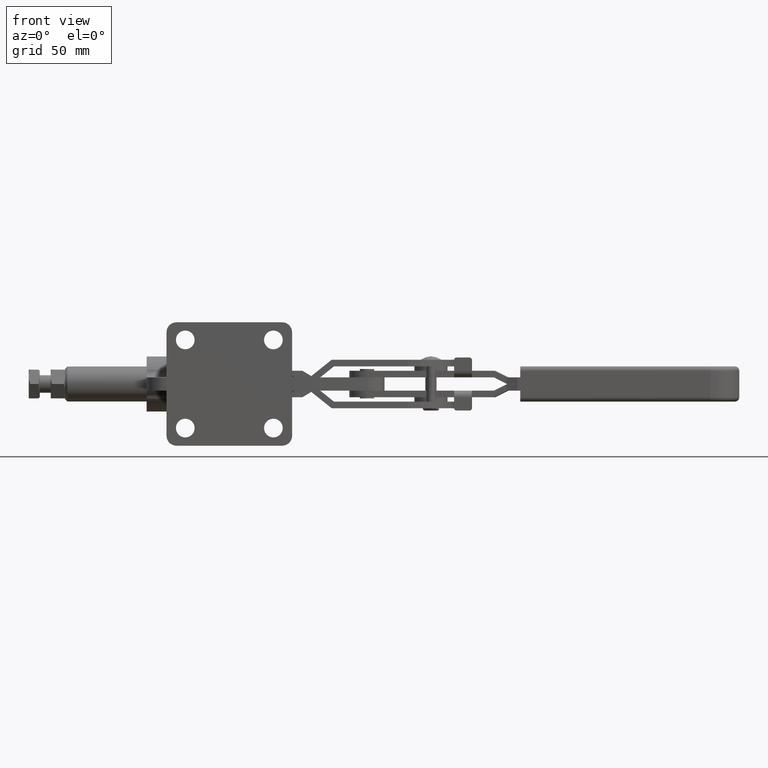
[diagram: clean part render]
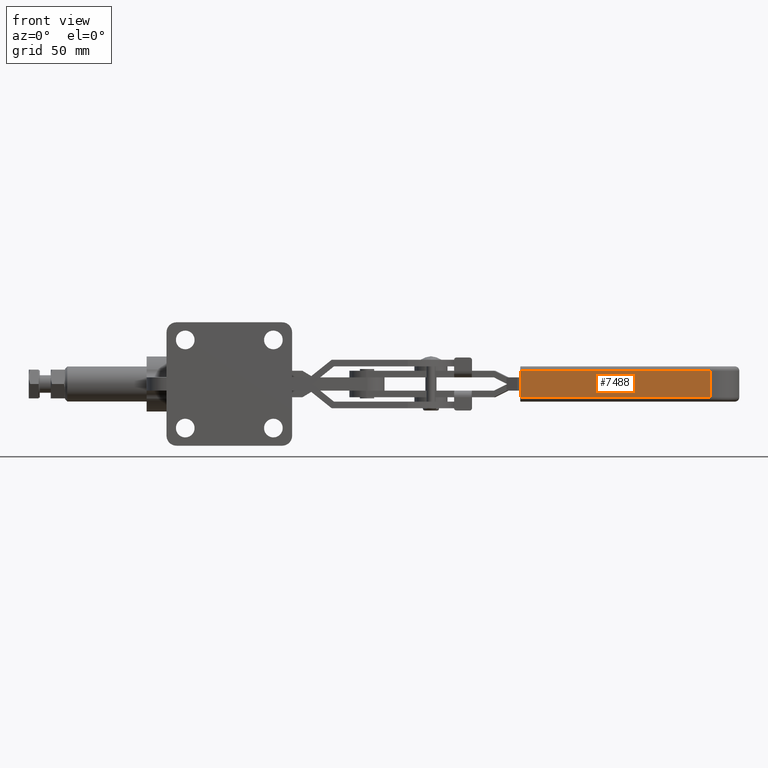
[diagram: same view with one face highlighted and labeled with its STEP entity id]
A machine part, front view. The second image highlights one B-rep face of the part: STEP entity #7488.
In plain terms, the highlighted planar face has unit normal (0.041, 0.9992, 0).
Its self-contained STEP definition (entity closure, byte-faithful):
#362 = LINE ( 'NONE', #4372, #4980 ) ;
#456 = CARTESIAN_POINT ( 'NONE',  ( 255.7525299247839700, 25.09048934197528500, -4.985681531188872900 ) ) ;
#465 = VERTEX_POINT ( 'NONE', #456 ) ;
#724 = EDGE_CURVE ( 'NONE', #4778, #4892, #5882, .T. ) ;
#875 = CARTESIAN_POINT ( 'NONE',  ( 169.5244894003020900, 28.62718524907047200, -4.985681531188870300 ) ) ;
#1108 = CARTESIAN_POINT ( 'NONE',  ( 255.7525299247839700, 25.09048934197527100, -16.98568153118885600 ) ) ;
#1278 = VERTEX_POINT ( 'NONE', #875 ) ;
#1338 = LINE ( 'NONE', #3234, #2716 ) ;
#1712 = PLANE ( 'NONE',  #3819 ) ;
#1719 = ORIENTED_EDGE ( 'NONE', *, *, #5346, .T. ) ;
#1730 = ORIENTED_EDGE ( 'NONE', *, *, #6124, .T. ) ;
#2150 = EDGE_CURVE ( 'NONE', #4778, #1278, #362, .T. ) ;
#2314 = DIRECTION ( 'NONE',  ( 0.04098115620526390100, 0.9991599195504591300, 1.190258440231679800E-016 ) ) ;
#2716 = VECTOR ( 'NONE', #4489, 1000.000000000000100 ) ;
#3234 = CARTESIAN_POINT ( 'NONE',  ( 169.5244894003020900, 28.62718524907047200, -4.985681531188870300 ) ) ;
#3819 = AXIS2_PLACEMENT_3D ( 'NONE', #5988, #2314, #6623 ) ;
#4023 = ORIENTED_EDGE ( 'NONE', *, *, #724, .T. ) ;
#4104 = CARTESIAN_POINT ( 'NONE',  ( 255.7525299247839700, 25.09048934197527100, -16.98568153118885600 ) ) ;
#4129 = ORIENTED_EDGE ( 'NONE', *, *, #2150, .F. ) ;
#4296 = DIRECTION ( 'NONE',  ( 2.391543916884221600E-017, -1.201068257676474700E-016, 1.000000000000000000 ) ) ;
#4372 = CARTESIAN_POINT ( 'NONE',  ( 169.5244894003020900, 28.62718524907047200, -18.98568153118885200 ) ) ;
#4489 = DIRECTION ( 'NONE',  ( -0.9991599195504590200, 0.04098115620526389400, 2.881746486405677700E-017 ) ) ;
#4620 = CARTESIAN_POINT ( 'NONE',  ( 169.5244894003020900, 28.62718524907047200, -16.98568153118885200 ) ) ;
#4709 = EDGE_LOOP ( 'NONE', ( #1719, #1730, #4129, #4023 ) ) ;
#4778 = VERTEX_POINT ( 'NONE', #4620 ) ;
#4892 = VERTEX_POINT ( 'NONE', #1108 ) ;
#4980 = VECTOR ( 'NONE', #4296, 1000.000000000000000 ) ;
#5267 = VECTOR ( 'NONE', #5409, 1000.000000000000000 ) ;
#5346 = EDGE_CURVE ( 'NONE', #4892, #465, #6879, .T. ) ;
#5409 = DIRECTION ( 'NONE',  ( 2.391543916884221600E-017, -1.201068257676474700E-016, 1.000000000000000000 ) ) ;
#5697 = CARTESIAN_POINT ( 'NONE',  ( 255.7525299247839700, 25.09048934197527100, -18.98568153118885600 ) ) ;
#5882 = LINE ( 'NONE', #4104, #7325 ) ;
#5988 = CARTESIAN_POINT ( 'NONE',  ( 169.5244894003020900, 28.62718524907047200, -18.98568153118885200 ) ) ;
#6124 = EDGE_CURVE ( 'NONE', #465, #1278, #1338, .T. ) ;
#6623 = DIRECTION ( 'NONE',  ( 0.9991599195504591300, -0.04098115620526390100, -2.881746486405678300E-017 ) ) ;
#6879 = LINE ( 'NONE', #5697, #5267 ) ;
#7143 = FACE_OUTER_BOUND ( 'NONE', #4709, .T. ) ;
#7325 = VECTOR ( 'NONE', #7721, 1000.000000000000100 ) ;
#7488 = ADVANCED_FACE ( 'NONE', ( #7143 ), #1712, .F. ) ;
#7721 = DIRECTION ( 'NONE',  ( 0.9991599195504590200, -0.04098115620526389400, -2.881746486405677700E-017 ) ) ;